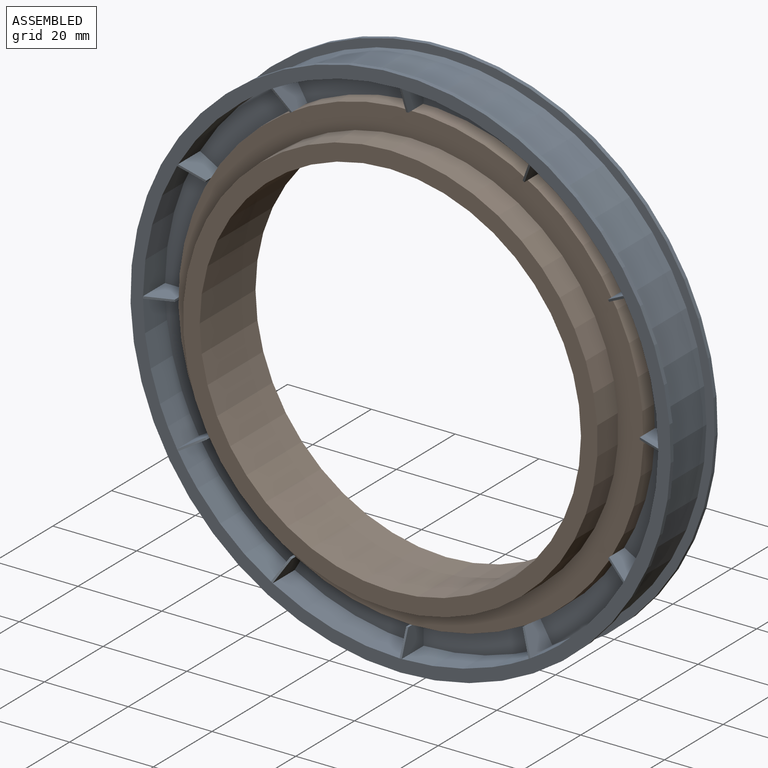
[diagram: assembled view]
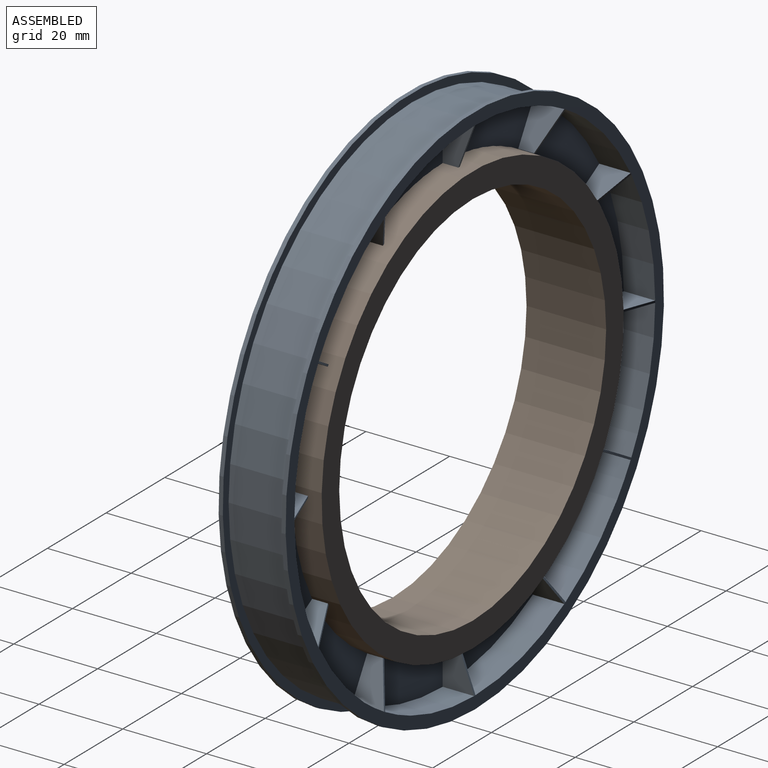
[diagram: assembled view, second angle]
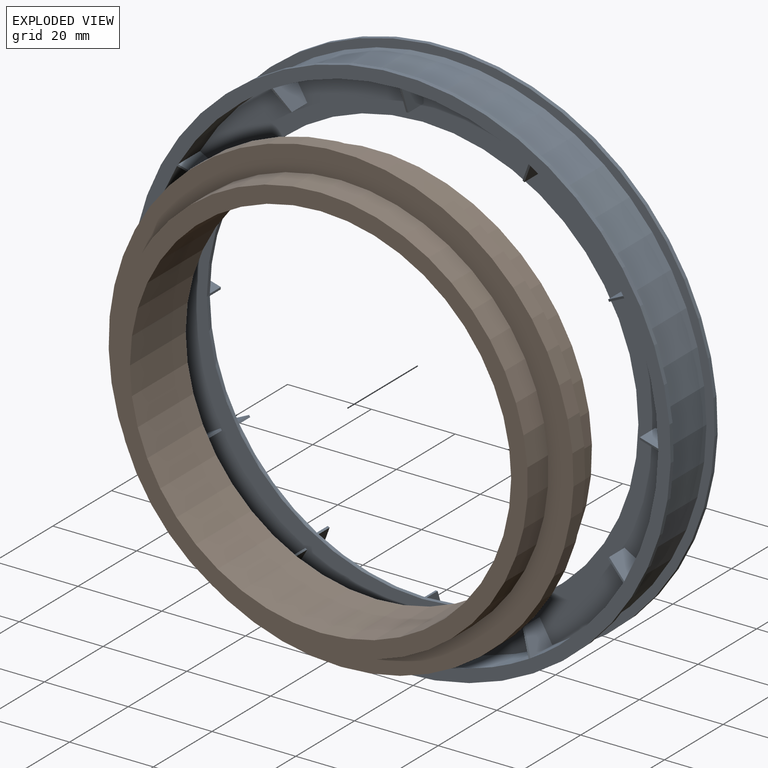
[diagram: exploded view]
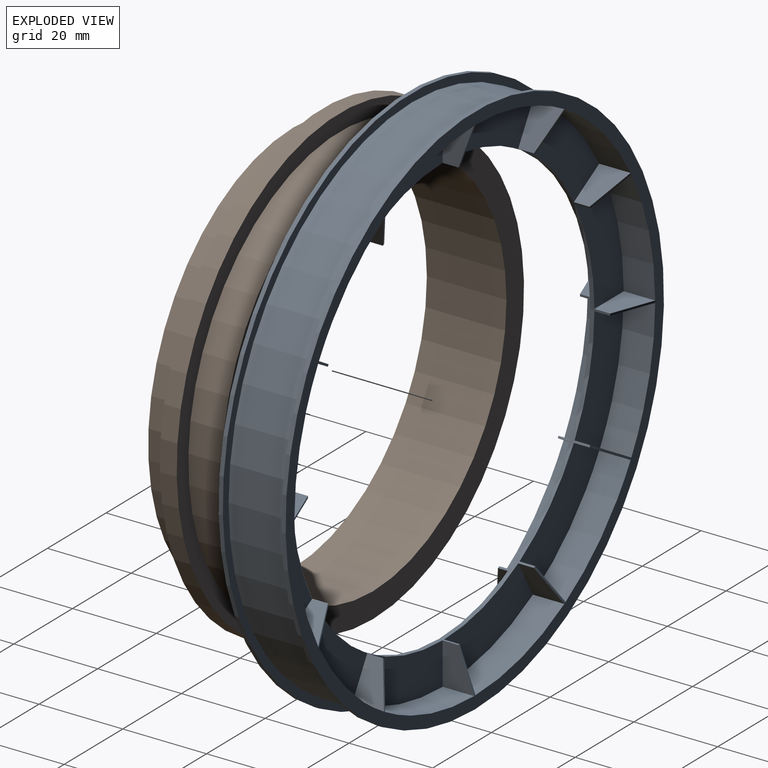
[diagram: exploded view, second angle]
ASSEMBLY  parts=2 mates=2
PART A: 129 faces, bbox 129x16x129 mm
  f0: plane 10x7.5mm, normal (1,0,0), area 56.3mm2, adj f54,f61,f62,f72
  f1: plane 10x7.5mm, normal (-1,0,0), area 56.2mm2, adj f24,f57,f61,f72
  f2: plane 8.66x7.5mm, normal (0.87,0,-0.5), area 56.3mm2, adj f52,f55,f61,f76
  f3: plane 8.66x7.5mm, normal (-0.87,0,0.5), area 56.3mm2, adj f54,f61,f62,f76
  f4: plane 8.66x7.5mm, normal (0.5,0,-0.87), area 56.3mm2, adj f49,f51,f61,f80
  f5: plane 8.66x7.5mm, normal (-0.5,0,0.87), area 56.3mm2, adj f52,f55,f61,f80
  f6: plane 10x7.5mm, normal (0,0,-1), area 56.3mm2, adj f46,f48,f61,f84
  f7: plane 10x7.5mm, normal (0,0,1), area 56.2mm2, adj f49,f51,f61,f84
  f8: plane 8.66x7.5mm, normal (-0.5,0,-0.87), area 56.3mm2, adj f43,f45,f61,f88
  f9: plane 8.66x7.5mm, normal (0.5,0,0.87), area 56.3mm2, adj f46,f48,f61,f88
  f10: plane 8.66x7.5mm, normal (-0.87,0,-0.5), area 56.3mm2, adj f40,f42,f61,f92
  f11: plane 8.66x7.5mm, normal (0.87,0,0.5), area 56.3mm2, adj f43,f45,f61,f92
  f12: plane 10x7.5mm, normal (-1,0,0), area 56.3mm2, adj f37,f39,f61,f96
  f13: plane 10x7.5mm, normal (1,0,0), area 56.2mm2, adj f40,f42,f61,f96
  f14: plane 8.66x7.5mm, normal (-0.87,0,0.5), area 56.3mm2, adj f34,f36,f61,f100
  f15: plane 8.66x7.5mm, normal (0.87,0,-0.5), area 56.3mm2, adj f37,f39,f61,f100
  f16: plane 8.66x7.5mm, normal (-0.5,0,0.87), area 56.3mm2, adj f31,f33,f61,f104
  f17: plane 8.66x7.5mm, normal (0.5,0,-0.87), area 56.3mm2, adj f34,f36,f61,f104
  f18: plane 10x7.5mm, normal (0,0,1), area 56.3mm2, adj f28,f30,f61,f108
  f19: plane 10x7.5mm, normal (0,0,-1), area 56.2mm2, adj f31,f33,f61,f108
  f20: plane 8.66x7.5mm, normal (0.5,0,0.87), area 56.3mm2, adj f25,f27,f61,f112
  f21: plane 8.66x7.5mm, normal (-0.5,0,-0.87), area 56.3mm2, adj f28,f30,f61,f112
  f22: plane 8.66x7.5mm, normal (0.87,0,0.5), area 56.3mm2, adj f24,f57,f61,f116
  f23: plane 8.66x7.5mm, normal (-0.87,0,-0.5), area 56.3mm2, adj f25,f27,f61,f116
  f24: cylinder r=61.5mm len=30.28mm, axis (0,-1,0), area 237.8mm2, adj f1,f22,f57,f63
  f25: plane 27.18x27.18mm, normal (0,1,0), area 290.8mm2, adj f20,f23,f27,f61
  f26: cylinder r=61.5mm len=22.17mm, axis (0,-1,0), area 237.8mm2, adj f59,f60,f110,f115
  f27: cylinder r=61.5mm len=22.17mm, axis (0,-1,0), area 237.8mm2, adj f20,f23,f25,f63
  f28: plane 30.3x16.79mm, normal (0,1,0), area 290.9mm2, adj f18,f21,f30,f61
  f29: cylinder r=61.5mm len=30.28mm, axis (0,-1,0), area 237.8mm2, adj f59,f60,f106,f111
  f30: cylinder r=61.5mm len=30.28mm, axis (0,-1,0), area 237.8mm2, adj f18,f21,f28,f63
  f31: plane 30.3x16.79mm, normal (0,1,0), area 290.8mm2, adj f16,f19,f33,f61
  f32: cylinder r=61.5mm len=30.28mm, axis (0,-1,0), area 237.8mm2, adj f59,f60,f102,f107
  f33: cylinder r=61.5mm len=30.28mm, axis (0,-1,0), area 237.8mm2, adj f16,f19,f31,f63
  f34: plane 27.18x27.18mm, normal (0,1,0), area 290.9mm2, adj f14,f17,f36,f61
  f35: cylinder r=61.5mm len=22.17mm, axis (0,-1,0), area 237.8mm2, adj f59,f60,f98,f103
  f36: cylinder r=61.5mm len=22.17mm, axis (0,-1,0), area 237.8mm2, adj f14,f17,f34,f63
  f37: plane 30.3x16.79mm, normal (0,1,0), area 290.8mm2, adj f12,f15,f39,f61
  f38: cylinder r=61.5mm len=30.28mm, axis (0,-1,0), area 237.8mm2, adj f59,f60,f94,f99
  f39: cylinder r=61.5mm len=30.28mm, axis (0,-1,0), area 237.8mm2, adj f12,f15,f37,f63
  f40: plane 30.3x16.79mm, normal (0,1,0), area 290.8mm2, adj f10,f13,f42,f61
  f41: cylinder r=61.5mm len=30.28mm, axis (0,-1,0), area 237.8mm2, adj f59,f60,f90,f95
  f42: cylinder r=61.5mm len=30.28mm, axis (0,-1,0), area 237.8mm2, adj f10,f13,f40,f63
  f43: plane 27.18x27.18mm, normal (0,1,0), area 290.8mm2, adj f8,f11,f45,f61
  f44: cylinder r=61.5mm len=22.17mm, axis (0,-1,0), area 237.8mm2, adj f59,f60,f86,f91
  f45: cylinder r=61.5mm len=22.17mm, axis (0,-1,0), area 237.8mm2, adj f8,f11,f43,f63
  f46: plane 30.3x16.79mm, normal (0,1,0), area 290.9mm2, adj f6,f9,f48,f61
  f47: cylinder r=61.5mm len=30.28mm, axis (0,-1,0), area 237.8mm2, adj f59,f60,f82,f87
  f48: cylinder r=61.5mm len=30.28mm, axis (0,-1,0), area 237.8mm2, adj f6,f9,f46,f63
  f49: plane 30.3x16.79mm, normal (0,1,0), area 290.8mm2, adj f4,f7,f51,f61
  f50: cylinder r=61.5mm len=30.28mm, axis (0,-1,0), area 237.8mm2, adj f59,f60,f78,f83
  f51: cylinder r=61.5mm len=30.28mm, axis (0,-1,0), area 237.8mm2, adj f4,f7,f49,f63
  f52: plane 27.18x27.18mm, normal (0,1,0), area 290.8mm2, adj f2,f5,f55,f61
  f53: cylinder r=61.5mm len=22.17mm, axis (0,-1,0), area 237.8mm2, adj f59,f60,f74,f79
  f54: plane 30.3x16.79mm, normal (0,1,0), area 290.9mm2, adj f0,f3,f61,f62
  f55: cylinder r=61.5mm len=22.17mm, axis (0,-1,0), area 237.8mm2, adj f2,f5,f52,f63
  f56: cylinder r=61.5mm len=30.28mm, axis (0,-1,0), area 237.8mm2, adj f59,f60,f70,f75
  f57: plane 30.3x16.79mm, normal (0,1,0), area 290.9mm2, adj f1,f22,f24,f61
  f58: cylinder r=61.5mm len=30.28mm, axis (0,-1,0), area 237.8mm2, adj f59,f60,f71,f114
  f59: plane 123.01x123.01mm, normal (0,-1,0), area 3514.2mm2, adj f26,f29,f32,f35,f38,f41,f44,f47
  f60: plane 129.01x129.01mm, normal (0,-1,0), area 1187.4mm2, adj f26,f29,f32,f35,f38,f41,f44,f47
  f61: cylinder r=51.5mm len=103mm, axis (0,-1,0), area 346.1mm2, adj f0,f1,f2,f3,f4,f5,f6,f7
  f62: cylinder r=61.5mm len=30.28mm, axis (0,-1,0), area 237.8mm2, adj f0,f3,f54,f63
  f63: plane 129.01x129.01mm, normal (0,1,0), area 1187.3mm2, adj f24,f27,f30,f33,f36,f39,f42,f45
  f64: cylinder r=64.5mm len=129mm, axis (0,-1,0), area 405.3mm2, adj f63,f65
  f65: plane 129x129mm, normal (0,-1,0), area 798mm2, adj f64,f66
  f66: cylinder r=62.5mm len=125mm, axis (0,-1,0), area 5497.8mm2, adj f65,f67
  f67: plane 129x129mm, normal (0,1,0), area 798mm2, adj f66,f68
  f68: cylinder r=64.5mm len=129mm, axis (0,-1,0), area 405.3mm2, adj f60,f67
  f69: plane 6x2.25mm, normal (0,-0.94,-0.35), area 3.2mm2, adj f60,f70,f71,f128
  f70: plane 7.5x6mm, normal (1,0,0), area 38.2mm2, adj f56,f59,f69,f128
  f71: plane 7.5x6mm, normal (-1,0,0), area 38.3mm2, adj f58,f59,f69,f128
  f72: plane 10x3.75mm, normal (0,0.94,-0.35), area 5.3mm2, adj f0,f1,f61,f63
  f73: plane 5.45x3.43mm, normal (-0.18,-0.94,-0.3), area 3.2mm2, adj f60,f74,f75,f127
  f74: plane 7.5x5.2mm, normal (0.87,0,-0.5), area 38.3mm2, adj f53,f59,f73,f127
  f75: plane 7.5x5.2mm, normal (-0.87,0,0.5), area 38.3mm2, adj f56,f59,f73,f127
  f76: plane 8.91x5.43mm, normal (-0.18,0.94,-0.3), area 5.3mm2, adj f2,f3,f61,f63
  f77: plane 5.45x3.43mm, normal (-0.3,-0.94,-0.18), area 3.2mm2, adj f60,f78,f79,f126
  f78: plane 7.5x5.2mm, normal (0.5,0,-0.87), area 38.3mm2, adj f50,f59,f77,f126
  f79: plane 7.5x5.2mm, normal (-0.5,0,0.87), area 38.3mm2, adj f53,f59,f77,f126
  f80: plane 8.91x5.44mm, normal (-0.3,0.94,-0.18), area 5.3mm2, adj f4,f5,f61,f63
  f81: plane 6x2.25mm, normal (-0.35,-0.94,0), area 3.2mm2, adj f60,f82,f83,f125
  f82: plane 7.5x6mm, normal (0,0,-1), area 38.2mm2, adj f47,f59,f81,f125
  f83: plane 7.5x6mm, normal (0,0,1), area 38.3mm2, adj f50,f59,f81,f125
  f84: plane 10x3.75mm, normal (-0.35,0.94,0), area 5.3mm2, adj f6,f7,f61,f63
  f85: plane 5.45x3.43mm, normal (-0.3,-0.94,0.18), area 3.2mm2, adj f60,f86,f87,f124
  f86: plane 7.5x5.2mm, normal (-0.5,0,-0.87), area 38.3mm2, adj f44,f59,f85,f124
  f87: plane 7.5x5.2mm, normal (0.5,0,0.87), area 38.3mm2, adj f47,f59,f85,f124
  f88: plane 8.91x5.43mm, normal (-0.3,0.94,0.18), area 5.3mm2, adj f8,f9,f61,f63
  f89: plane 5.45x3.43mm, normal (-0.18,-0.94,0.3), area 3.2mm2, adj f60,f90,f91,f123
  f90: plane 7.5x5.2mm, normal (-0.87,0,-0.5), area 38.3mm2, adj f41,f59,f89,f123
  f91: plane 7.5x5.2mm, normal (0.87,0,0.5), area 38.3mm2, adj f44,f59,f89,f123
  f92: plane 8.91x5.44mm, normal (-0.18,0.94,0.3), area 5.3mm2, adj f10,f11,f61,f63
  f93: plane 6x2.25mm, normal (0,-0.94,0.35), area 3.2mm2, adj f60,f94,f95,f122
  f94: plane 7.5x6mm, normal (-1,0,0), area 38.2mm2, adj f38,f59,f93,f122
  f95: plane 7.5x6mm, normal (1,0,0), area 38.3mm2, adj f41,f59,f93,f122
  f96: plane 10x3.75mm, normal (0,0.94,0.35), area 5.3mm2, adj f12,f13,f61,f63
  f97: plane 5.45x3.43mm, normal (0.18,-0.94,0.3), area 3.2mm2, adj f60,f98,f99,f121
  f98: plane 7.5x5.2mm, normal (-0.87,0,0.5), area 38.3mm2, adj f35,f59,f97,f121
  f99: plane 7.5x5.2mm, normal (0.87,0,-0.5), area 38.3mm2, adj f38,f59,f97,f121
  f100: plane 8.91x5.43mm, normal (0.18,0.94,0.3), area 5.3mm2, adj f14,f15,f61,f63
  f101: plane 5.45x3.43mm, normal (0.3,-0.94,0.18), area 3.2mm2, adj f60,f102,f103,f120
  f102: plane 7.5x5.2mm, normal (-0.5,0,0.87), area 38.3mm2, adj f32,f59,f101,f120
  f103: plane 7.5x5.2mm, normal (0.5,0,-0.87), area 38.3mm2, adj f35,f59,f101,f120
  f104: plane 8.91x5.44mm, normal (0.3,0.94,0.18), area 5.4mm2, adj f16,f17,f61,f63
  f105: plane 6x2.25mm, normal (0.35,-0.94,0), area 3.2mm2, adj f60,f106,f107,f119
  f106: plane 7.5x6mm, normal (0,0,1), area 38.2mm2, adj f29,f59,f105,f119
  f107: plane 7.5x6mm, normal (0,0,-1), area 38.3mm2, adj f32,f59,f105,f119
  f108: plane 10x3.75mm, normal (0.35,0.94,0), area 5.3mm2, adj f18,f19,f61,f63
  f109: plane 5.45x3.43mm, normal (0.3,-0.94,-0.18), area 3.2mm2, adj f60,f110,f111,f118
  f110: plane 7.5x5.2mm, normal (0.5,0,0.87), area 38.3mm2, adj f26,f59,f109,f118
  f111: plane 7.5x5.2mm, normal (-0.5,0,-0.87), area 38.3mm2, adj f29,f59,f109,f118
  f112: plane 8.91x5.43mm, normal (0.3,0.94,-0.18), area 5.3mm2, adj f20,f21,f61,f63
  f113: plane 5.45x3.43mm, normal (0.18,-0.94,-0.3), area 3.2mm2, adj f60,f114,f115,f117
  f114: plane 7.5x5.2mm, normal (0.87,0,0.5), area 38.3mm2, adj f58,f59,f113,f117
  f115: plane 7.5x5.2mm, normal (-0.87,0,-0.5), area 38.3mm2, adj f26,f59,f113,f117
  f116: plane 8.91x5.44mm, normal (0.18,0.94,-0.3), area 5.4mm2, adj f22,f23,f61,f63
  f117: cylinder r=55.5mm len=5.25mm, axis (0,-1,0), area 2.6mm2, adj f59,f113,f114,f115
  f118: cylinder r=55.5mm len=5.25mm, axis (0,-1,0), area 2.6mm2, adj f59,f109,f110,f111
  f119: cylinder r=55.5mm len=5.25mm, axis (0,-1,0), area 2.6mm2, adj f59,f105,f106,f107
  f120: cylinder r=55.5mm len=5.25mm, axis (0,-1,0), area 2.6mm2, adj f59,f101,f102,f103
  f121: cylinder r=55.5mm len=5.25mm, axis (0,-1,0), area 2.6mm2, adj f59,f97,f98,f99
  f122: cylinder r=55.5mm len=5.25mm, axis (0,-1,0), area 2.6mm2, adj f59,f93,f94,f95
  f123: cylinder r=55.5mm len=5.25mm, axis (0,-1,0), area 2.6mm2, adj f59,f89,f90,f91
  f124: cylinder r=55.5mm len=5.25mm, axis (0,-1,0), area 2.6mm2, adj f59,f85,f86,f87
  f125: cylinder r=55.5mm len=5.25mm, axis (0,-1,0), area 2.6mm2, adj f59,f81,f82,f83
  f126: cylinder r=55.5mm len=5.25mm, axis (0,-1,0), area 2.6mm2, adj f59,f77,f78,f79
  f127: cylinder r=55.5mm len=5.25mm, axis (0,-1,0), area 2.6mm2, adj f59,f73,f74,f75
  f128: cylinder r=55.5mm len=5.25mm, axis (0,-1,0), area 2.6mm2, adj f59,f69,f70,f71
PART B: 8 faces, bbox 111x19x111 mm
  f0: cylinder r=49.5mm len=99mm, axis (0,-1,0), area 2177.1mm2, adj f1,f7
  f1: plane 99x99mm, normal (0,-1,0), area 1193.8mm2, adj f0,f2
  f2: cylinder r=45.5mm len=91mm, axis (0,-1,0), area 5431.8mm2, adj f1,f3
  f3: plane 103x103mm, normal (0,1,0), area 1828.4mm2, adj f2,f4
  f4: cylinder r=51.5mm len=103mm, axis (0,-1,0), area 2588.7mm2, adj f3,f5
  f5: plane 111x111mm, normal (0,1,0), area 1344.6mm2, adj f4,f6
  f6: cylinder r=55.5mm len=111mm, axis (0,-1,0), area 1394.9mm2, adj f5,f7
  f7: plane 111x111mm, normal (0,-1,0), area 1979.2mm2, adj f0,f6
PLACE A t=(-2.01,-13.88,-4.47)mm
PLACE B t=(-2.01,6.12,-4.47)mm
MATE slider B.f0 <-> A.f24  axis (0,-1,0) through (-2.01,10.12,-4.47)mm
MATE planar B.f0 <-> A.f24  axis (0,1,0) through (-2.01,6.12,-4.47)mm
